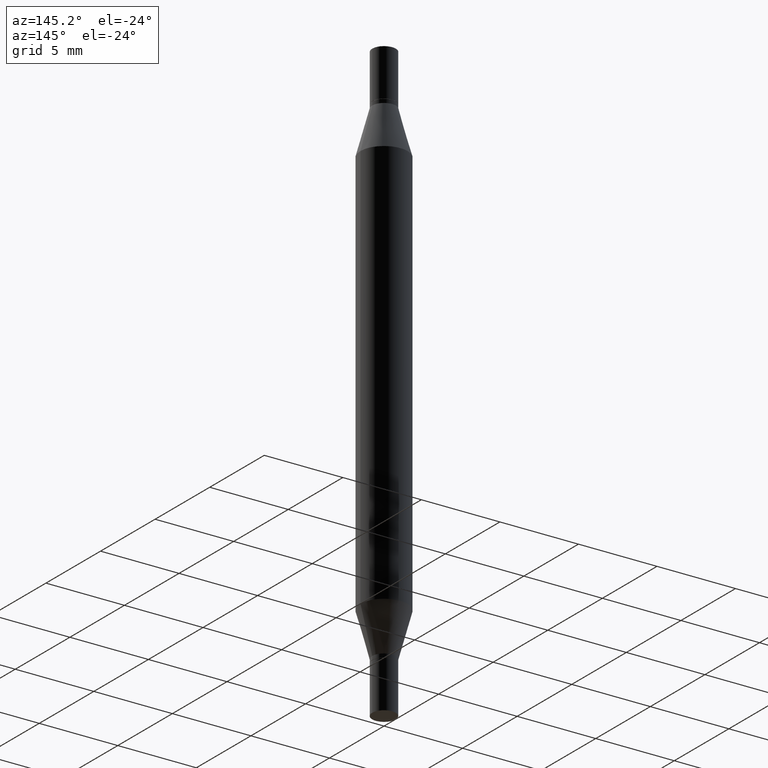
[diagram: clean part render]
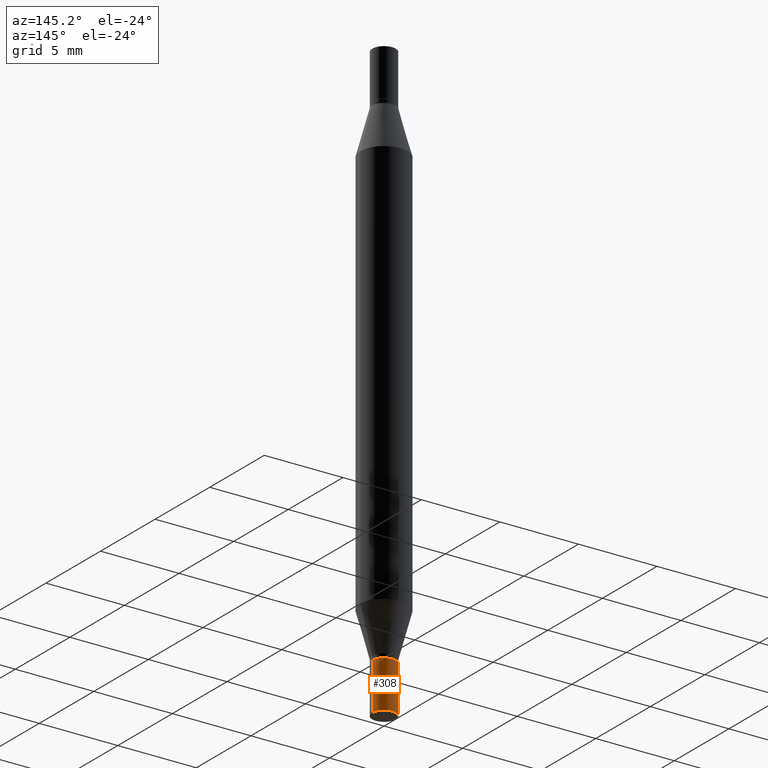
[diagram: same view with one face highlighted and labeled with its STEP entity id]
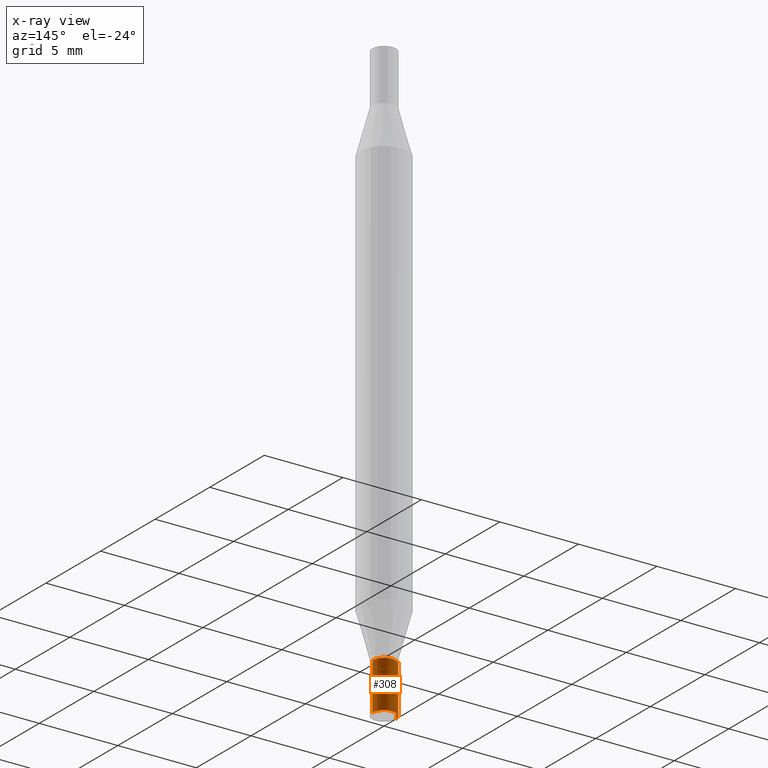
[diagram: x-ray of the same camera — body ghosted, the highlighted face saturated]
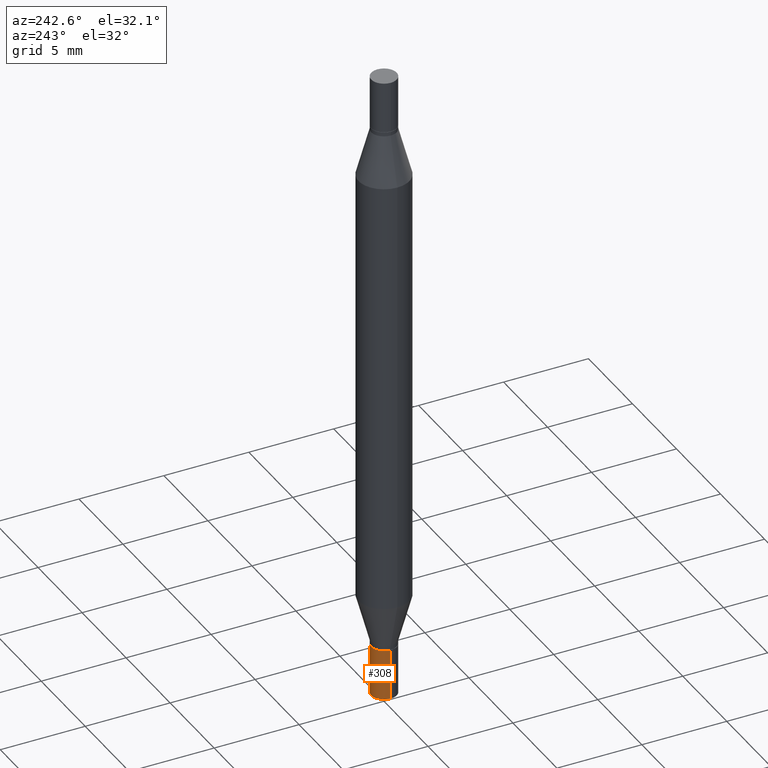
[diagram: same view with one face highlighted and labeled with its STEP entity id]
A machine part, auxiliary view. The second image highlights one B-rep face of the part: STEP entity #308.
The next image is the same camera in x-ray: the body ghosted, the highlighted face saturated — about 0% of this face is hidden behind the body in this view.
A second angle (auxiliary view) of the same face is appended — the face is thin or edge-on in the first view.
In plain terms, the highlighted cylindrical surface (edge-blend (fillet) strip) has radius 0.7506 mm, axis along (-0, 0, 1).
Its self-contained STEP definition (entity closure, byte-faithful):
#20 = EDGE_CURVE ( 'NONE', #158, #929, #876, .T. ) ;
#90 = ORIENTED_EDGE ( 'NONE', *, *, #507, .F. ) ;
#91 = DIRECTION ( 'NONE',  ( 1.000000000000000000, -6.982962677686261977E-15, 0.000000000000000000 ) ) ;
#120 = CARTESIAN_POINT ( 'NONE',  ( 0.000000000000000000, 0.000000000000000000, 0.000000000000000000 ) ) ;
#121 = VECTOR ( 'NONE', #295, 39.37007874015748143 ) ;
#157 = CARTESIAN_POINT ( 'NONE',  ( 0.02954999999999999988, -5.429951778168858482E-15, -1.496099999999999985 ) ) ;
#158 = VERTEX_POINT ( 'NONE', #157 ) ;
#183 = DIRECTION ( 'NONE',  ( -2.445468806185136597E-29, 3.491481338843145583E-15, 1.000000000000000000 ) ) ;
#217 = CARTESIAN_POINT ( 'NONE',  ( 3.369856014923117948E-29, -4.811261284925853951E-15, -1.377999999999999892 ) ) ;
#246 = EDGE_LOOP ( 'NONE', ( #459, #249, #90, #797 ) ) ;
#249 = ORIENTED_EDGE ( 'NONE', *, *, #952, .T. ) ;
#295 = DIRECTION ( 'NONE',  ( -2.445468806185136877E-29, 3.491481338843145188E-15, 1.000000000000000000 ) ) ;
#308 = ADVANCED_FACE ( 'NONE', ( #937 ), #556, .T. ) ;
#324 = DIRECTION ( 'NONE',  ( 1.000000000000000000, -6.982962677686266711E-15, 4.876176775795935793E-29 ) ) ;
#343 = LINE ( 'NONE', #717, #766 ) ;
#346 = AXIS2_PLACEMENT_3D ( 'NONE', #120, #183, #324 ) ;
#365 = CARTESIAN_POINT ( 'NONE',  ( 3.658665880933582389E-29, -5.223605231043229660E-15, -1.496099999999999985 ) ) ;
#375 = CARTESIAN_POINT ( 'NONE',  ( 0.02954999999999999988, -5.017607832051483561E-15, -1.377999999999999892 ) ) ;
#459 = ORIENTED_EDGE ( 'NONE', *, *, #20, .T. ) ;
#507 = EDGE_CURVE ( 'NONE', #606, #852, #665, .T. ) ;
#556 = CYLINDRICAL_SURFACE ( 'NONE', #346, 0.02954999999999999988 ) ;
#589 = LINE ( 'NONE', #905, #121 ) ;
#606 = VERTEX_POINT ( 'NONE', #375 ) ;
#652 = DIRECTION ( 'NONE',  ( 1.000000000000000000, -6.982962677686261977E-15, 0.000000000000000000 ) ) ;
#664 = AXIS2_PLACEMENT_3D ( 'NONE', #365, #880, #652 ) ;
#665 = CIRCLE ( 'NONE', #799, 0.02954999999999999988 ) ;
#685 = CARTESIAN_POINT ( 'NONE',  ( -0.02954999999999999988, -4.807467879567433237E-15, -1.377999999999999892 ) ) ;
#698 = EDGE_CURVE ( 'NONE', #158, #606, #589, .T. ) ;
#717 = CARTESIAN_POINT ( 'NONE',  ( -0.02954999999999999988, 2.099653784171096041E-16, -1.453545319170324550E-30 ) ) ;
#766 = VECTOR ( 'NONE', #958, 39.37007874015748143 ) ;
#797 = ORIENTED_EDGE ( 'NONE', *, *, #698, .F. ) ;
#799 = AXIS2_PLACEMENT_3D ( 'NONE', #217, #894, #91 ) ;
#852 = VERTEX_POINT ( 'NONE', #685 ) ;
#855 = CARTESIAN_POINT ( 'NONE',  ( -0.02954999999999999988, -4.807467879567433237E-15, -1.496099999999999985 ) ) ;
#876 = CIRCLE ( 'NONE', #664, 0.02954999999999999988 ) ;
#880 = DIRECTION ( 'NONE',  ( -2.445468806185136597E-29, 3.491481338843145583E-15, 1.000000000000000000 ) ) ;
#894 = DIRECTION ( 'NONE',  ( -2.445468806185136597E-29, 3.491481338843145583E-15, 1.000000000000000000 ) ) ;
#905 = CARTESIAN_POINT ( 'NONE',  ( 0.02954999999999999988, -2.063465471256291914E-16, 1.440910237247699070E-30 ) ) ;
#929 = VERTEX_POINT ( 'NONE', #855 ) ;
#937 = FACE_OUTER_BOUND ( 'NONE', #246, .T. ) ;
#952 = EDGE_CURVE ( 'NONE', #929, #852, #343, .T. ) ;
#958 = DIRECTION ( 'NONE',  ( -2.445468806185136877E-29, 3.491481338843145188E-15, 1.000000000000000000 ) ) ;